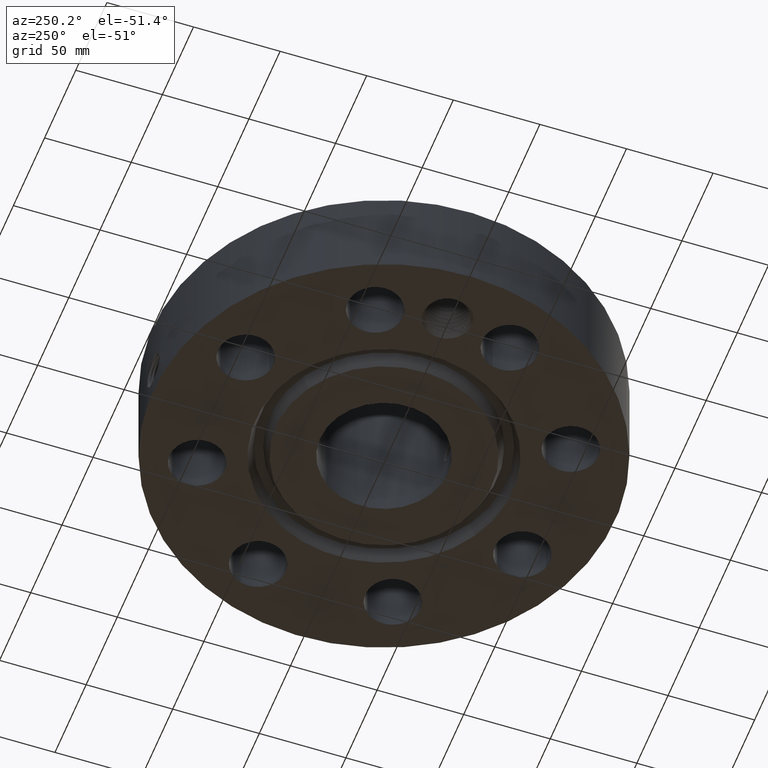
[diagram: clean part render]
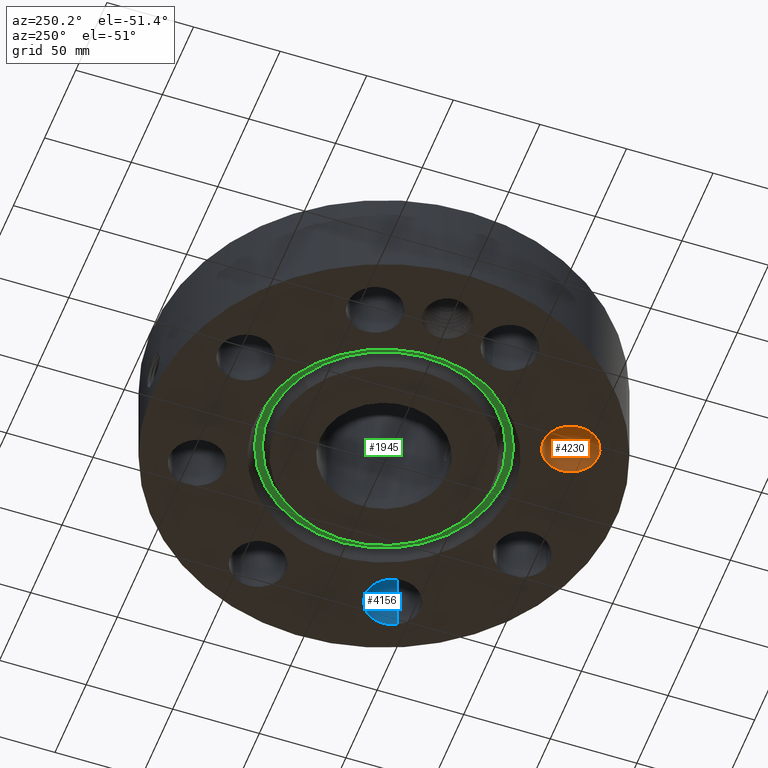
[diagram: same view with three faces highlighted in distinct colors, each labeled with its STEP entity id]
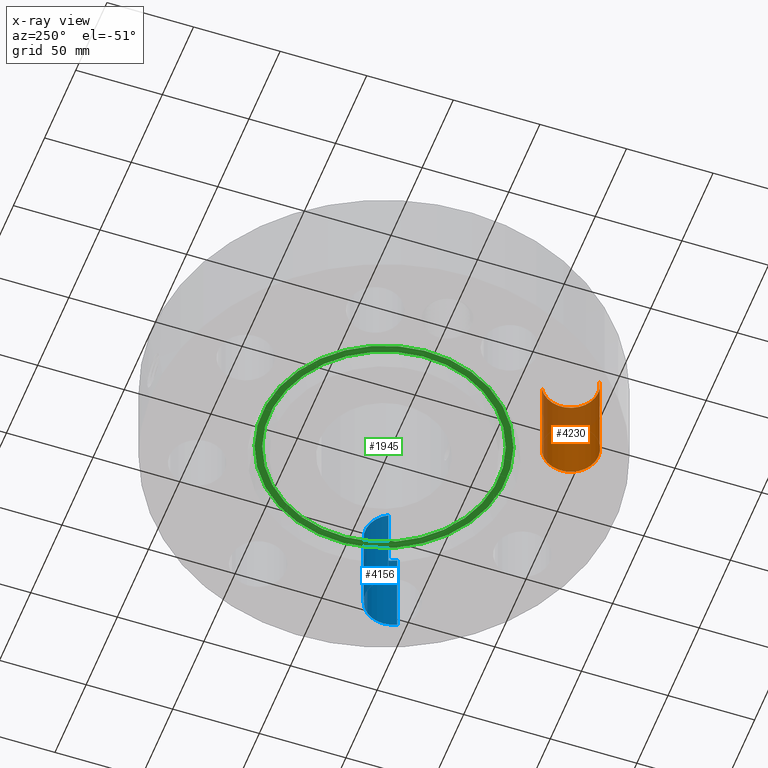
[diagram: x-ray of the same camera — body ghosted, the three highlighted faces saturated]
A machine part, auxiliary view with three faces highlighted in distinct colors.
The next image is the same camera in x-ray (body ghosted, the three faces saturated) — at least one of them is partly hidden behind the body in this view.
Their STEP definitions:

[orange] entity #4230 — the highlighted cylindrical surface (edge-blend (fillet) strip) has radius 15.875 mm, axis along (0, -0, -1).
#3039=AXIS2_PLACEMENT_3D('Circle Axis2P3D',#3037,#3038,$) ;
#4203=AXIS2_PLACEMENT_3D('Cylinder Axis2P3D',#4200,#4201,#4202) ;
#4214=AXIS2_PLACEMENT_3D('Circle Axis2P3D',#4212,#4213,$) ;
#3032=CARTESIAN_POINT('Vertex',(-1.8303746911,-4.24400723124,2.19200000001)) ;
#3034=CARTESIAN_POINT('Vertex',(-1.23109276784,-3.14702902888,2.19200000001)) ;
#3037=CARTESIAN_POINT('Axis2P3D Location',(-1.53073372947,-3.69551813006,2.19200000001)) ;
#4200=CARTESIAN_POINT('Axis2P3D Location',(-1.53073372947,-3.69551813006,2.18806299213)) ;
#4205=CARTESIAN_POINT('Line Origine',(-1.23109276784,-3.14702902888,1.096)) ;
#4209=CARTESIAN_POINT('Vertex',(-1.23109276784,-3.14702902888,0.)) ;
#4212=CARTESIAN_POINT('Axis2P3D Location',(-1.53073372947,-3.69551813006,0.)) ;
#4216=CARTESIAN_POINT('Vertex',(-1.8303746911,-4.24400723124,0.)) ;
#4219=CARTESIAN_POINT('Line Origine',(-1.8303746911,-4.24400723124,1.096)) ;
#3038=DIRECTION('Axis2P3D Direction',(0.,0.,-0.0393700787402)) ;
#4201=DIRECTION('Axis2P3D Direction',(0.,-0.,-0.0393700787402)) ;
#4202=DIRECTION('Axis2P3D XDirection',(-0.0188750212049,-0.0345504945626,0.)) ;
#4206=DIRECTION('Vector Direction',(0.,0.,-0.0393700787402)) ;
#4213=DIRECTION('Axis2P3D Direction',(0.,-0.,-0.0393700787402)) ;
#4220=DIRECTION('Vector Direction',(0.,0.,-0.0393700787402)) ;
#4207=VECTOR('Line Direction',#4206,0.0393700787402) ;
#4221=VECTOR('Line Direction',#4220,0.0393700787402) ;
#4225=ORIENTED_EDGE('',*,*,#4211,.F.) ;
#4226=ORIENTED_EDGE('',*,*,#4218,.T.) ;
#4227=ORIENTED_EDGE('',*,*,#4223,.T.) ;
#4228=ORIENTED_EDGE('',*,*,#3041,.F.) ;
#4230=ADVANCED_FACE('PartBody',(#4229),#4204,.F.) ;
#3040=CIRCLE('generated circle',#3039,0.625000000002) ;
#4215=CIRCLE('generated circle',#4214,0.625000000002) ;
#4204=CYLINDRICAL_SURFACE('generated cylinder',#4203,0.625000000002) ;
#3041=EDGE_CURVE('',#3035,#3033,#3040,.T.) ;
#4211=EDGE_CURVE('',#4210,#3035,#4208,.F.) ;
#4218=EDGE_CURVE('',#4210,#4217,#4215,.T.) ;
#4223=EDGE_CURVE('',#4217,#3033,#4222,.F.) ;
#4224=EDGE_LOOP('',(#4225,#4226,#4227,#4228)) ;
#4229=FACE_OUTER_BOUND('',#4224,.T.) ;
#4208=LINE('Line',#4205,#4207) ;
#4222=LINE('Line',#4219,#4221) ;
#3033=VERTEX_POINT('',#3032) ;
#3035=VERTEX_POINT('',#3034) ;
#4210=VERTEX_POINT('',#4209) ;
#4217=VERTEX_POINT('',#4216) ;

[blue] entity #4156 — the highlighted cylindrical surface (edge-blend (fillet) strip) has radius 15.875 mm, axis along (0, -0, -1).
#2990=AXIS2_PLACEMENT_3D('Circle Axis2P3D',#2988,#2989,$) ;
#4117=AXIS2_PLACEMENT_3D('Cylinder Axis2P3D',#4114,#4115,#4116) ;
#4147=AXIS2_PLACEMENT_3D('Circle Axis2P3D',#4145,#4146,$) ;
#2988=CARTESIAN_POINT('Axis2P3D Location',(3.69551813006,-1.53073372947,2.19200000001)) ;
#2992=CARTESIAN_POINT('Vertex',(3.14702902888,-1.23109276784,2.19200000001)) ;
#2994=CARTESIAN_POINT('Vertex',(4.24400723124,-1.8303746911,2.19200000001)) ;
#4114=CARTESIAN_POINT('Axis2P3D Location',(3.69551813006,-1.53073372947,2.18806299213)) ;
#4119=CARTESIAN_POINT('Line Origine',(4.24400723124,-1.8303746911,1.096)) ;
#4123=CARTESIAN_POINT('Vertex',(4.24400723124,-1.8303746911,0.)) ;
#4130=CARTESIAN_POINT('Vertex',(3.14702902888,-1.23109276784,0.)) ;
#4133=CARTESIAN_POINT('Line Origine',(3.14702902888,-1.23109276784,1.096)) ;
#4145=CARTESIAN_POINT('Axis2P3D Location',(3.69551813006,-1.53073372947,0.)) ;
#2989=DIRECTION('Axis2P3D Direction',(0.,0.,-0.0393700787402)) ;
#4115=DIRECTION('Axis2P3D Direction',(0.,-0.,-0.0393700787402)) ;
#4116=DIRECTION('Axis2P3D XDirection',(-0.0345504945626,0.0188750212049,0.)) ;
#4120=DIRECTION('Vector Direction',(0.,0.,-0.0393700787402)) ;
#4134=DIRECTION('Vector Direction',(0.,0.,-0.0393700787402)) ;
#4146=DIRECTION('Axis2P3D Direction',(0.,-0.,-0.0393700787402)) ;
#4121=VECTOR('Line Direction',#4120,0.0393700787402) ;
#4135=VECTOR('Line Direction',#4134,0.0393700787402) ;
#4151=ORIENTED_EDGE('',*,*,#4137,.F.) ;
#4152=ORIENTED_EDGE('',*,*,#4149,.T.) ;
#4153=ORIENTED_EDGE('',*,*,#4125,.T.) ;
#4154=ORIENTED_EDGE('',*,*,#2996,.F.) ;
#4156=ADVANCED_FACE('PartBody',(#4155),#4118,.F.) ;
#2991=CIRCLE('generated circle',#2990,0.625000000002) ;
#4148=CIRCLE('generated circle',#4147,0.625000000002) ;
#4118=CYLINDRICAL_SURFACE('generated cylinder',#4117,0.625000000002) ;
#2996=EDGE_CURVE('',#2993,#2995,#2991,.T.) ;
#4125=EDGE_CURVE('',#4124,#2995,#4122,.F.) ;
#4137=EDGE_CURVE('',#4131,#2993,#4136,.F.) ;
#4149=EDGE_CURVE('',#4131,#4124,#4148,.T.) ;
#4150=EDGE_LOOP('',(#4151,#4152,#4153,#4154)) ;
#4155=FACE_OUTER_BOUND('',#4150,.T.) ;
#4122=LINE('Line',#4119,#4121) ;
#4136=LINE('Line',#4133,#4135) ;
#2993=VERTEX_POINT('',#2992) ;
#2995=VERTEX_POINT('',#2994) ;
#4124=VERTEX_POINT('',#4123) ;
#4131=VERTEX_POINT('',#4130) ;

[green] entity #1945 — the highlighted planar face has unit normal (0, 0, 1).
#1425=AXIS2_PLACEMENT_3D('Circle Axis2P3D',#1423,#1424,$) ;
#1451=AXIS2_PLACEMENT_3D('Circle Axis2P3D',#1449,#1450,$) ;
#1921=AXIS2_PLACEMENT_3D('Plane Axis2P3D',#1918,#1919,#1920) ;
#1925=AXIS2_PLACEMENT_3D('Circle Axis2P3D',#1923,#1924,$) ;
#1934=AXIS2_PLACEMENT_3D('Circle Axis2P3D',#1932,#1933,$) ;
#1423=CARTESIAN_POINT('Axis2P3D Location',(0.,0.,0.312000000001)) ;
#1427=CARTESIAN_POINT('Vertex',(1.24904386048,-2.28635945048,0.312000000001)) ;
#1429=CARTESIAN_POINT('Vertex',(-1.24904386048,2.28635945048,0.312000000001)) ;
#1449=CARTESIAN_POINT('Axis2P3D Location',(0.,0.,0.312000000001)) ;
#1918=CARTESIAN_POINT('Axis2P3D Location',(0.,2.6052927095,0.312000000001)) ;
#1923=CARTESIAN_POINT('Axis2P3D Location',(0.,0.,0.312000000001)) ;
#1927=CARTESIAN_POINT('Vertex',(-1.32786840953,2.4306468197,0.312000000001)) ;
#1929=CARTESIAN_POINT('Vertex',(1.32786840953,-2.4306468197,0.312000000001)) ;
#1932=CARTESIAN_POINT('Axis2P3D Location',(0.,0.,0.312000000001)) ;
#1424=DIRECTION('Axis2P3D Direction',(0.,0.,0.0393700787402)) ;
#1450=DIRECTION('Axis2P3D Direction',(0.,0.,0.0393700787402)) ;
#1919=DIRECTION('Axis2P3D Direction',(0.,0.,0.0393700787402)) ;
#1920=DIRECTION('Axis2P3D XDirection',(0.0393700787402,0.,0.)) ;
#1924=DIRECTION('Axis2P3D Direction',(0.,0.,0.0393700787402)) ;
#1933=DIRECTION('Axis2P3D Direction',(0.,0.,0.0393700787402)) ;
#1938=ORIENTED_EDGE('',*,*,#1931,.F.) ;
#1939=ORIENTED_EDGE('',*,*,#1936,.F.) ;
#1942=ORIENTED_EDGE('',*,*,#1431,.T.) ;
#1943=ORIENTED_EDGE('',*,*,#1453,.T.) ;
#1944=FACE_BOUND('',#1941,.T.) ;
#1945=ADVANCED_FACE('PartBody',(#1940,#1944),#1922,.F.) ;
#1426=CIRCLE('generated circle',#1425,2.6052927095) ;
#1452=CIRCLE('generated circle',#1451,2.6052927095) ;
#1926=CIRCLE('generated circle',#1925,2.76970729052) ;
#1935=CIRCLE('generated circle',#1934,2.76970729052) ;
#1431=EDGE_CURVE('',#1428,#1430,#1426,.T.) ;
#1453=EDGE_CURVE('',#1430,#1428,#1452,.T.) ;
#1931=EDGE_CURVE('',#1928,#1930,#1926,.T.) ;
#1936=EDGE_CURVE('',#1930,#1928,#1935,.T.) ;
#1937=EDGE_LOOP('',(#1938,#1939)) ;
#1941=EDGE_LOOP('',(#1942,#1943)) ;
#1940=FACE_OUTER_BOUND('',#1937,.T.) ;
#1922=PLANE('',#1921) ;
#1428=VERTEX_POINT('',#1427) ;
#1430=VERTEX_POINT('',#1429) ;
#1928=VERTEX_POINT('',#1927) ;
#1930=VERTEX_POINT('',#1929) ;